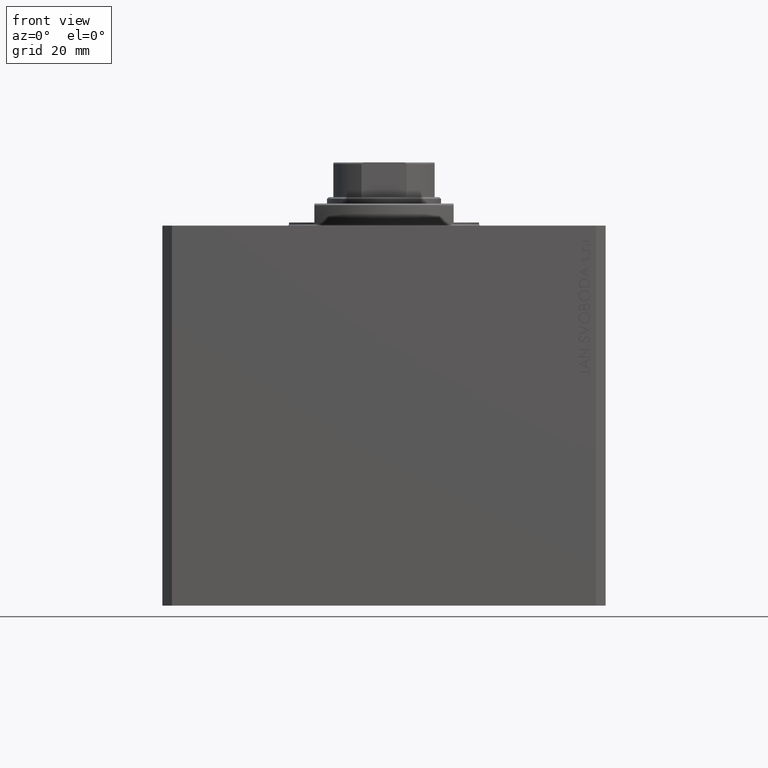
[diagram: clean part render]
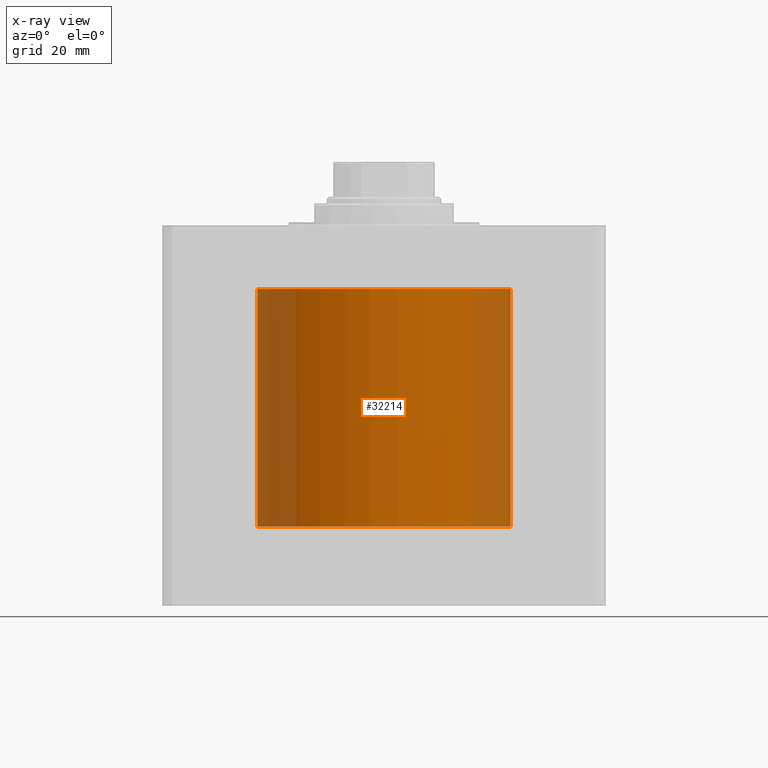
[diagram: x-ray — body ghosted, one internal face saturated and labeled with its STEP entity id]
A machine part, front view, then the same camera in x-ray: the body is ghosted and one INTERNAL B-rep face — a face not visible from any outside direction — is saturated and labeled: STEP entity #32214.
In plain terms, the highlighted cylindrical surface (partial cylindrical patch) has radius 40 mm, axis along (0, 0, 1).
Its self-contained STEP definition (entity closure, byte-faithful):
#157 = CARTESIAN_POINT ( 'NONE',  ( -40.00000000000000000, -0.2642733961107794904, -32.99999999999999289 ) ) ;
#327 = VERTEX_POINT ( 'NONE', #42116 ) ;
#1117 = B_SPLINE_CURVE_WITH_KNOTS ( 'NONE', 3,
 ( #34942, #10260, #31343, #2366, #2127, #39487, #21029, #13612, #31580, #6670, #46176, #13386, #28222, #20322, #13844, #28458, #9556, #43059, #24146, #21259, #31107, #45695, #27990, #12903, #42595, #43504, #157, #47315 ),
 .UNSPECIFIED., .F., .F.,
 ( 4, 2, 2, 2, 2, 2, 2, 2, 2, 2, 2, 2, 2, 4 ),
 ( 0.006253887622122840731, 0.007035445425860899910, 0.007817003229598959088, 0.008207782131467996484, 0.008598561033337033879, 0.008989339935206071275, 0.009380118837075108670, 0.009770897738944146066, 0.01016167664081318346, 0.01055245554268222086, 0.01094323444455125825, 0.01133401334642029565, 0.01172479224828933304, 0.01250635005202740783 ),
 .UNSPECIFIED. ) ;
#1270 = DIRECTION ( 'NONE',  ( -0.000000000000000000, -0.000000000000000000, 1.000000000000000000 ) ) ;
#1612 = AXIS2_PLACEMENT_3D ( 'NONE', #11343, #1270, #8456 ) ;
#2127 = CARTESIAN_POINT ( 'NONE',  ( -39.98155010483453253, -1.228713488296116818, -36.59945425739334723 ) ) ;
#2129 = CARTESIAN_POINT ( 'NONE',  ( 39.96237188306369603, -1.736113553211090066, -86.00147143175053088 ) ) ;
#2366 = CARTESIAN_POINT ( 'NONE',  ( -39.98808477704317710, -1.005500044224703959, -36.74837801808690330 ) ) ;
#3391 = DIRECTION ( 'NONE',  ( 0.000000000000000000, 0.000000000000000000, 1.000000000000000000 ) ) ;
#4842 = CARTESIAN_POINT ( 'NONE',  ( 39.96843082707852801, -1.590542785129184233, -83.78045409442967184 ) ) ;
#5175 = LINE ( 'NONE', #20253, #13742 ) ;
#5241 = CARTESIAN_POINT ( 'NONE',  ( 39.96840300585797934, -1.591231583159740559, -86.21861287823932685 ) ) ;
#5727 = CARTESIAN_POINT ( 'NONE',  ( 39.94996871087638368, -1.999999999999533928, -84.99999999999998579 ) ) ;
#6670 = CARTESIAN_POINT ( 'NONE',  ( -39.95501191335212354, -1.897248253400663609, -35.64621551410552058 ) ) ;
#7229 = DIRECTION ( 'NONE',  ( 1.000000000000000000, 0.000000000000000000, 0.000000000000000000 ) ) ;
#7644 = DIRECTION ( 'NONE',  ( -0.000000000000000000, -0.000000000000000000, 1.000000000000000000 ) ) ;
#7833 = LINE ( 'NONE', #36814, #9929 ) ;
#7925 = VERTEX_POINT ( 'NONE', #29033 ) ;
#8456 = DIRECTION ( 'NONE',  ( 1.000000000000000000, 0.000000000000000000, 0.000000000000000000 ) ) ;
#9556 = CARTESIAN_POINT ( 'NONE',  ( -39.95496063565278888, -1.898325849076777372, -34.35689967467779127 ) ) ;
#9929 = VECTOR ( 'NONE', #39935, 1000.000000000000000 ) ;
#10215 = ORIENTED_EDGE ( 'NONE', *, *, #32346, .F. ) ;
#10260 = CARTESIAN_POINT ( 'NONE',  ( -39.99999999999999289, -0.2610222839562321706, -37.00000000000000000 ) ) ;
#10436 = ORIENTED_EDGE ( 'NONE', *, *, #46975, .T. ) ;
#10452 = EDGE_CURVE ( 'NONE', #34868, #7925, #22140, .T. ) ;
#10799 = EDGE_CURVE ( 'NONE', #14343, #25227, #14960, .T. ) ;
#11343 = CARTESIAN_POINT ( 'NONE',  ( 0.000000000000000000, 0.000000000000000000, -95.00000000000000000 ) ) ;
#11843 = VECTOR ( 'NONE', #30295, 1000.000000000000000 ) ;
#12250 = EDGE_CURVE ( 'NONE', #25227, #327, #16555, .T. ) ;
#12499 = CARTESIAN_POINT ( 'NONE',  ( 39.95499164081206800, -1.897673944715563277, -84.35502007373054312 ) ) ;
#12639 = CARTESIAN_POINT ( 'NONE',  ( -40.00000000000000000, 4.898587196589413026E-15, -20.00000000000000355 ) ) ;
#12903 = CARTESIAN_POINT ( 'NONE',  ( -39.98754073909765339, -1.004238739824514282, -33.26542551294939187 ) ) ;
#13085 = ORIENTED_EDGE ( 'NONE', *, *, #18893, .F. ) ;
#13131 = EDGE_LOOP ( 'NONE', ( #10215, #18783, #10436, #42084, #28236, #17310, #18469, #36901, #13085 ) ) ;
#13386 = CARTESIAN_POINT ( 'NONE',  ( -39.95063264744342746, -1.986857498184113169, -35.26341185617021523 ) ) ;
#13612 = CARTESIAN_POINT ( 'NONE',  ( -39.96240665200651421, -1.735323248996501588, -36.00287365536161843 ) ) ;
#13742 = VECTOR ( 'NONE', #46105, 1000.000000000000000 ) ;
#13844 = CARTESIAN_POINT ( 'NONE',  ( -39.95061496280469271, -1.987210616751022840, -34.73929722557829791 ) ) ;
#13846 = CIRCLE ( 'NONE', #44438, 40.00000000000000000 ) ;
#14015 = AXIS2_PLACEMENT_3D ( 'NONE', #37369, #14612, #36652 ) ;
#14343 = VERTEX_POINT ( 'NONE', #28352 ) ;
#14612 = DIRECTION ( 'NONE',  ( 0.000000000000000000, 0.000000000000000000, 1.000000000000000000 ) ) ;
#14882 = VERTEX_POINT ( 'NONE', #12639 ) ;
#14960 = B_SPLINE_CURVE_WITH_KNOTS ( 'NONE', 3,
 ( #26857, #30699, #35005, #41948, #45287, #44819, #4842, #41477, #23488, #12499, #16793, #27101, #37659, #38118 ),
 .UNSPECIFIED., .F., .F.,
 ( 4, 2, 2, 2, 2, 2, 4 ),
 ( 0.006253887622123758400, 0.007035852529074620478, 0.007817817436025482555, 0.008208799889500899283, 0.008599782342976317745, 0.008990764796451734472, 0.009381747249927151200 ),
 .UNSPECIFIED. ) ;
#16555 = B_SPLINE_CURVE_WITH_KNOTS ( 'NONE', 3,
 ( #5727, #38059, #31345, #35177, #38296, #24377, #2129, #5241, #19847, #31110, #20325, #34468, #16965, #31583, #45699, #16727 ),
 .UNSPECIFIED., .F., .F.,
 ( 4, 2, 2, 2, 2, 2, 2, 4 ),
 ( 0.009381747249927151200, 0.009772322600189680894, 0.01016289795045221059, 0.01055347330071474028, 0.01094404865097726998, 0.01133462400123979967, 0.01172519935150232936, 0.01250635005202738875 ),
 .UNSPECIFIED. ) ;
#16727 = CARTESIAN_POINT ( 'NONE',  ( 40.00000000000000000, 3.022137594547156248E-17, -87.00000000000000000 ) ) ;
#16793 = CARTESIAN_POINT ( 'NONE',  ( 39.95311872421955002, -1.936221022746515308, -84.48226116818536013 ) ) ;
#16813 = CARTESIAN_POINT ( 'NONE',  ( 0.000000000000000000, 0.000000000000000000, -95.00000000000000000 ) ) ;
#16837 = VERTEX_POINT ( 'NONE', #30602 ) ;
#16965 = CARTESIAN_POINT ( 'NONE',  ( 39.99034025637237022, -0.8872121321392498761, -86.79716463504581725 ) ) ;
#17310 = ORIENTED_EDGE ( 'NONE', *, *, #25020, .F. ) ;
#17371 = VECTOR ( 'NONE', #7644, 1000.000000000000000 ) ;
#18469 = ORIENTED_EDGE ( 'NONE', *, *, #10799, .T. ) ;
#18645 = CARTESIAN_POINT ( 'NONE',  ( 40.00000000000000000, 0.000000000000000000, -95.00000000000000000 ) ) ;
#18783 = ORIENTED_EDGE ( 'NONE', *, *, #10452, .T. ) ;
#18893 = EDGE_CURVE ( 'NONE', #35008, #327, #33265, .T. ) ;
#19847 = CARTESIAN_POINT ( 'NONE',  ( 39.97171421371167810, -1.506842900384648853, -86.32152895162371919 ) ) ;
#20253 = CARTESIAN_POINT ( 'NONE',  ( -40.00000000000000000, 4.898587196589413026E-15, -95.00000000000000000 ) ) ;
#20322 = CARTESIAN_POINT ( 'NONE',  ( -39.94996329829713488, -2.000108116222454324, -34.86972341031480482 ) ) ;
#20325 = CARTESIAN_POINT ( 'NONE',  ( 39.98148221579612027, -1.221876869789999764, -86.58878709545477648 ) ) ;
#21029 = CARTESIAN_POINT ( 'NONE',  ( -39.96845429220498858, -1.589953990140400064, -36.22030678780492963 ) ) ;
#21259 = CARTESIAN_POINT ( 'NONE',  ( -39.96837961631823788, -1.591818043399304550, -33.78214652093856074 ) ) ;
#22140 = LINE ( 'NONE', #25974, #11843 ) ;
#23488 = CARTESIAN_POINT ( 'NONE',  ( 39.95963195732932860, -1.797313899295208905, -84.11296659975893419 ) ) ;
#24146 = CARTESIAN_POINT ( 'NONE',  ( -39.96234813593243018, -1.736659235415104252, -33.99946690219611156 ) ) ;
#24377 = CARTESIAN_POINT ( 'NONE',  ( 39.95962314440981800, -1.797510241044922186, -85.88665407656374384 ) ) ;
#24700 = CIRCLE ( 'NONE', #14015, 40.00000000000000000 ) ;
#25020 = EDGE_CURVE ( 'NONE', #14343, #29432, #7833, .T. ) ;
#25227 = VERTEX_POINT ( 'NONE', #37757 ) ;
#25974 = CARTESIAN_POINT ( 'NONE',  ( -40.00000000000000000, 4.898587196589413026E-15, -95.00000000000000000 ) ) ;
#26577 = CARTESIAN_POINT ( 'NONE',  ( -40.00000000000000000, 4.898587196589413026E-15, -95.00000000000000000 ) ) ;
#26857 = CARTESIAN_POINT ( 'NONE',  ( 40.00000000000000000, -7.123019543693126097E-24, -82.99999999999998579 ) ) ;
#27101 = CARTESIAN_POINT ( 'NONE',  ( 39.95062265781891142, -1.987057345190007540, -84.73806784500418132 ) ) ;
#27990 = CARTESIAN_POINT ( 'NONE',  ( -39.98146574706436240, -1.222418309695456173, -33.41162423406408521 ) ) ;
#28009 = CARTESIAN_POINT ( 'NONE',  ( 40.00000000000000000, 0.000000000000000000, -95.00000000000000000 ) ) ;
#28222 = CARTESIAN_POINT ( 'NONE',  ( -39.94997419154996265, -1.999890523593354619, -35.13357529726873452 ) ) ;
#28236 = ORIENTED_EDGE ( 'NONE', *, *, #41997, .T. ) ;
#28352 = CARTESIAN_POINT ( 'NONE',  ( 40.00000000000000000, -7.123019543693126097E-24, -82.99999999999998579 ) ) ;
#28458 = CARTESIAN_POINT ( 'NONE',  ( -39.95310035905028201, -1.936598471871985083, -34.48370712704680585 ) ) ;
#28850 = EDGE_CURVE ( 'NONE', #16837, #14882, #5175, .T. ) ;
#29033 = CARTESIAN_POINT ( 'NONE',  ( -40.00000000000000000, 4.898587189460959019E-15, -37.00000000000000000 ) ) ;
#29432 = VERTEX_POINT ( 'NONE', #44329 ) ;
#30295 = DIRECTION ( 'NONE',  ( -0.000000000000000000, -0.000000000000000000, 1.000000000000000000 ) ) ;
#30602 = CARTESIAN_POINT ( 'NONE',  ( -40.00000000000000000, 3.176717991102973922E-16, -32.99999999999999289 ) ) ;
#30699 = CARTESIAN_POINT ( 'NONE',  ( 40.00000000000000711, -0.2611582470416159429, -83.00000000000005684 ) ) ;
#31107 = CARTESIAN_POINT ( 'NONE',  ( -39.97169201868642574, -1.507432341118292163, -33.67913638197957482 ) ) ;
#31110 = CARTESIAN_POINT ( 'NONE',  ( 39.97824023806944638, -1.322429648898208576, -86.50605249580961242 ) ) ;
#31343 = CARTESIAN_POINT ( 'NONE',  ( -39.99729065416362772, -0.5241133477467165847, -36.94760397200742830 ) ) ;
#31345 = CARTESIAN_POINT ( 'NONE',  ( 39.95062491871536992, -1.987011453486452250, -85.26218355703861107 ) ) ;
#31580 = CARTESIAN_POINT ( 'NONE',  ( -39.95965519480901662, -1.796798442540265661, -35.88806575352695916 ) ) ;
#31583 = CARTESIAN_POINT ( 'NONE',  ( 39.99725731907661697, -0.5265393650770479050, -86.94693108982437479 ) ) ;
#32214 = ADVANCED_FACE ( 'NONE', ( #41030 ), #33844, .F. ) ;
#32346 = EDGE_CURVE ( 'NONE', #34868, #35008, #13846, .T. ) ;
#33265 = LINE ( 'NONE', #18645, #17371 ) ;
#33844 = CYLINDRICAL_SURFACE ( 'NONE', #1612, 40.00000000000000000 ) ;
#34468 = CARTESIAN_POINT ( 'NONE',  ( 39.98755274677900218, -1.003757231862751009, -86.73484839080963127 ) ) ;
#34868 = VERTEX_POINT ( 'NONE', #26577 ) ;
#34942 = CARTESIAN_POINT ( 'NONE',  ( -40.00000000000000000, 4.898587189460959019E-15, -37.00000000000000000 ) ) ;
#35005 = CARTESIAN_POINT ( 'NONE',  ( 39.99728772807394250, -0.5243847237203292933, -83.05245097526227482 ) ) ;
#35008 = VERTEX_POINT ( 'NONE', #28009 ) ;
#35177 = CARTESIAN_POINT ( 'NONE',  ( 39.95311763711179509, -1.936243008321337555, -85.51760771496813618 ) ) ;
#36652 = DIRECTION ( 'NONE',  ( 1.000000000000000000, 0.000000000000000000, 0.000000000000000000 ) ) ;
#36814 = CARTESIAN_POINT ( 'NONE',  ( 40.00000000000000000, 0.000000000000000000, -95.00000000000000000 ) ) ;
#36901 = ORIENTED_EDGE ( 'NONE', *, *, #12250, .T. ) ;
#37369 = CARTESIAN_POINT ( 'NONE',  ( 0.000000000000000000, 0.000000000000000000, -20.00000000000000355 ) ) ;
#37659 = CARTESIAN_POINT ( 'NONE',  ( 39.94996871087638368, -1.999999999999534372, -84.86798774079922225 ) ) ;
#37757 = CARTESIAN_POINT ( 'NONE',  ( 39.94996871087638368, -1.999999999999533928, -84.99999999999998579 ) ) ;
#38059 = CARTESIAN_POINT ( 'NONE',  ( 39.94996871087637658, -1.999999999999533928, -85.13187480388944550 ) ) ;
#38118 = CARTESIAN_POINT ( 'NONE',  ( 39.94996871087638368, -1.999999999999533928, -84.99999999999998579 ) ) ;
#38296 = CARTESIAN_POINT ( 'NONE',  ( 39.95498092565202342, -1.897899929052392132, -85.64434026527243304 ) ) ;
#39487 = CARTESIAN_POINT ( 'NONE',  ( -39.97176586693763767, -1.505474969618711079, -36.32308080074695056 ) ) ;
#39935 = DIRECTION ( 'NONE',  ( -0.000000000000000000, -0.000000000000000000, 1.000000000000000000 ) ) ;
#41030 = FACE_OUTER_BOUND ( 'NONE', #13131, .T. ) ;
#41477 = CARTESIAN_POINT ( 'NONE',  ( 39.96238287616974816, -1.735869807532471221, -83.99806458370963469 ) ) ;
#41948 = CARTESIAN_POINT ( 'NONE',  ( 39.98807331454906233, -1.005980880063963578, -83.25187843352546224 ) ) ;
#41997 = EDGE_CURVE ( 'NONE', #14882, #29432, #24700, .T. ) ;
#42084 = ORIENTED_EDGE ( 'NONE', *, *, #28850, .T. ) ;
#42116 = CARTESIAN_POINT ( 'NONE',  ( 40.00000000000000000, 3.022137594547156248E-17, -87.00000000000000000 ) ) ;
#42595 = CARTESIAN_POINT ( 'NONE',  ( -39.99033090231615262, -0.8876408111740532458, -33.20304211855953014 ) ) ;
#43059 = CARTESIAN_POINT ( 'NONE',  ( -39.95959991158211011, -1.798025398075954628, -34.11437946863432558 ) ) ;
#43504 = CARTESIAN_POINT ( 'NONE',  ( -39.99725439346650546, -0.5268097663652565599, -33.05312383049329128 ) ) ;
#44329 = CARTESIAN_POINT ( 'NONE',  ( 40.00000000000000000, 0.000000000000000000, -20.00000000000000355 ) ) ;
#44438 = AXIS2_PLACEMENT_3D ( 'NONE', #16813, #3391, #7229 ) ;
#44819 = CARTESIAN_POINT ( 'NONE',  ( 39.97174371281857930, -1.506063825800100453, -83.67758258078892197 ) ) ;
#45287 = CARTESIAN_POINT ( 'NONE',  ( 39.98153325464723196, -1.229265378214520199, -83.40094686079743269 ) ) ;
#45695 = CARTESIAN_POINT ( 'NONE',  ( -39.97822161943979324, -1.322993290506748076, -33.49443641325464682 ) ) ;
#45699 = CARTESIAN_POINT ( 'NONE',  ( 39.99999999999999289, -0.2641357395636182437, -86.99999999999994316 ) ) ;
#46105 = DIRECTION ( 'NONE',  ( -0.000000000000000000, -0.000000000000000000, 1.000000000000000000 ) ) ;
#46176 = CARTESIAN_POINT ( 'NONE',  ( -39.95313607126405486, -1.935864075839068610, -35.51905568481351594 ) ) ;
#46975 = EDGE_CURVE ( 'NONE', #7925, #16837, #1117, .T. ) ;
#47315 = CARTESIAN_POINT ( 'NONE',  ( -40.00000000000000000, 3.176717991102973922E-16, -32.99999999999999289 ) ) ;